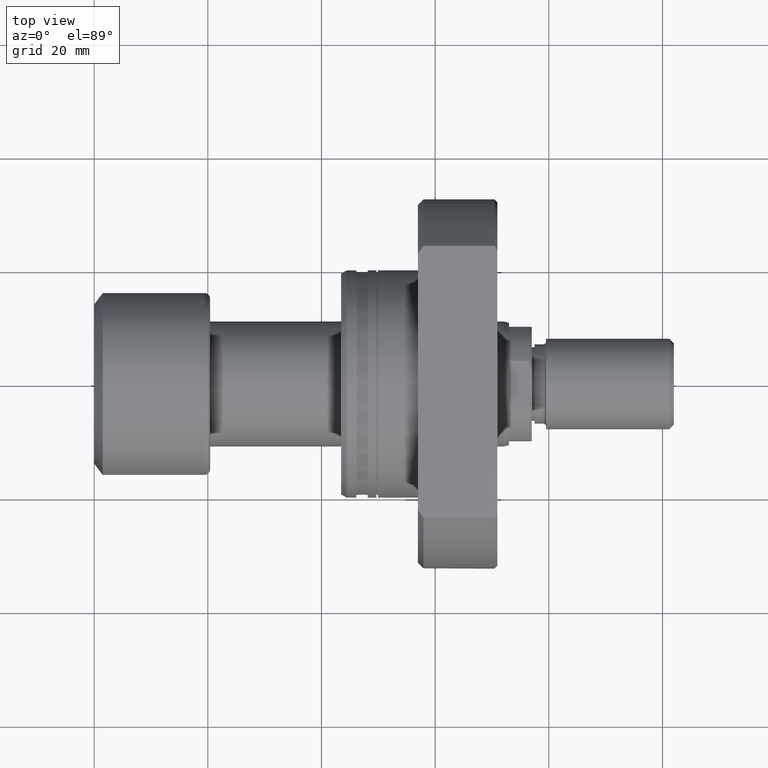
[diagram: clean part render]
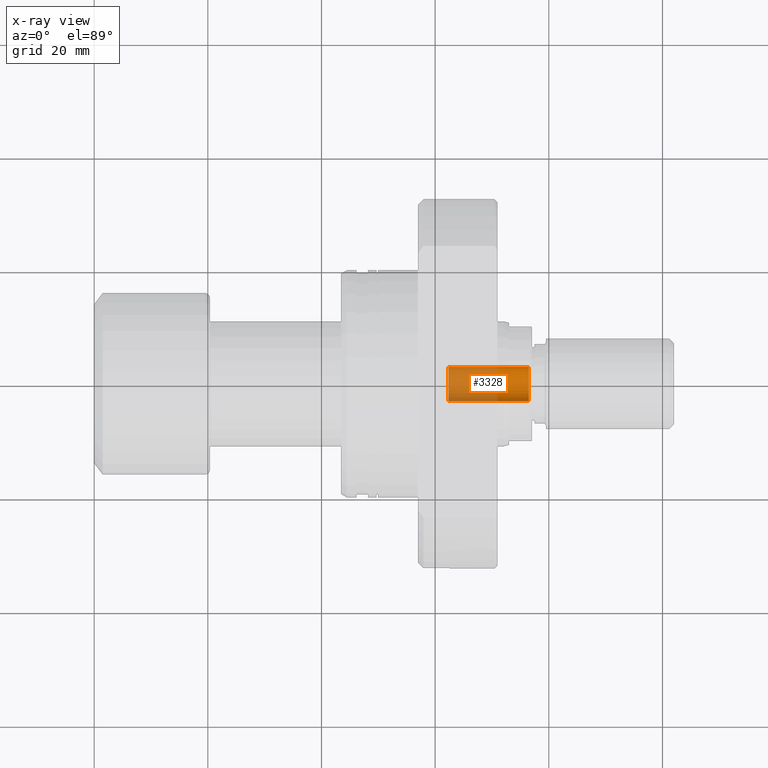
[diagram: x-ray — body ghosted, one internal face saturated and labeled with its STEP entity id]
A machine part, top view, then the same camera in x-ray: the body is ghosted and one INTERNAL B-rep face — a face not visible from any outside direction — is saturated and labeled: STEP entity #3328.
In plain terms, the highlighted cylindrical surface (edge-blend (fillet) strip) has radius 3 mm, axis along (1, -0, 0).
Its self-contained STEP definition (entity closure, byte-faithful):
#24 = EDGE_CURVE ( 'NONE', #3173, #2110, #705, .T. ) ;
#84 = DIRECTION ( 'NONE',  ( 1.619075244244818427E-14, 1.000000000000000000, 0.000000000000000000 ) ) ;
#106 = CARTESIAN_POINT ( 'NONE',  ( 76.50000000000008527, -1.267807571611558059E-12, 0.000000000000000000 ) ) ;
#110 = EDGE_CURVE ( 'NONE', #3337, #3173, #139, .T. ) ;
#139 = CIRCLE ( 'NONE', #2037, 3.000000000000373479 ) ;
#218 = CARTESIAN_POINT ( 'NONE',  ( 62.30000000000004690, 2.999999999999340972, 0.000000000000000000 ) ) ;
#277 = ORIENTED_EDGE ( 'NONE', *, *, #2679, .T. ) ;
#457 = DIRECTION ( 'NONE',  ( 1.619075244244818427E-14, 1.000000000000000000, 0.000000000000000000 ) ) ;
#705 = LINE ( 'NONE', #719, #2999 ) ;
#719 = CARTESIAN_POINT ( 'NONE',  ( 62.30000000000004690, 2.999999999999340972, 0.000000000000000000 ) ) ;
#877 = VERTEX_POINT ( 'NONE', #3384 ) ;
#925 = DIRECTION ( 'NONE',  ( 1.000000000000000000, -1.657264799492230625E-14, -0.000000000000000000 ) ) ;
#946 = CARTESIAN_POINT ( 'NONE',  ( 62.29999999999995453, -3.000000000001405986, 3.673940397442516914E-16 ) ) ;
#1075 = LINE ( 'NONE', #3344, #2421 ) ;
#1186 = CARTESIAN_POINT ( 'NONE',  ( 62.30000000000000426, -1.032475970083659863E-12, 0.000000000000000000 ) ) ;
#1219 = ORIENTED_EDGE ( 'NONE', *, *, #1362, .T. ) ;
#1223 = DIRECTION ( 'NONE',  ( 1.000000000000000000, -1.657264799492235042E-14, 0.000000000000000000 ) ) ;
#1362 = EDGE_CURVE ( 'NONE', #877, #2110, #1980, .T. ) ;
#1611 = CARTESIAN_POINT ( 'NONE',  ( 62.30000000000000426, -1.032475970083659863E-12, 0.000000000000000000 ) ) ;
#1760 = EDGE_LOOP ( 'NONE', ( #2087, #277, #1219, #2853 ) ) ;
#1796 = DIRECTION ( 'NONE',  ( -1.850371707708363781E-14, -1.000000000000000000, 0.000000000000000000 ) ) ;
#1940 = DIRECTION ( 'NONE',  ( 1.000000000000000000, -1.657264799492230625E-14, 0.000000000000000000 ) ) ;
#1980 = CIRCLE ( 'NONE', #2465, 3.000000000000373479 ) ;
#2037 = AXIS2_PLACEMENT_3D ( 'NONE', #1611, #1940, #457 ) ;
#2087 = ORIENTED_EDGE ( 'NONE', *, *, #110, .F. ) ;
#2110 = VERTEX_POINT ( 'NONE', #2424 ) ;
#2385 = DIRECTION ( 'NONE',  ( 1.000000000000000000, -1.657264799492230625E-14, -0.000000000000000000 ) ) ;
#2421 = VECTOR ( 'NONE', #3667, 1000.000000000000000 ) ;
#2424 = CARTESIAN_POINT ( 'NONE',  ( 76.50000000000014211, 2.999999999999105604, 0.000000000000000000 ) ) ;
#2465 = AXIS2_PLACEMENT_3D ( 'NONE', #106, #1223, #1796 ) ;
#2679 = EDGE_CURVE ( 'NONE', #3337, #877, #1075, .T. ) ;
#2779 = AXIS2_PLACEMENT_3D ( 'NONE', #1186, #925, #84 ) ;
#2853 = ORIENTED_EDGE ( 'NONE', *, *, #24, .F. ) ;
#2999 = VECTOR ( 'NONE', #2385, 1000.000000000000000 ) ;
#3173 = VERTEX_POINT ( 'NONE', #218 ) ;
#3183 = CYLINDRICAL_SURFACE ( 'NONE', #2779, 3.000000000000373479 ) ;
#3328 = ADVANCED_FACE ( 'NONE', ( #3498 ), #3183, .F. ) ;
#3337 = VERTEX_POINT ( 'NONE', #946 ) ;
#3344 = CARTESIAN_POINT ( 'NONE',  ( 62.29999999999995453, -3.000000000001405986, 3.673940397442516914E-16 ) ) ;
#3384 = CARTESIAN_POINT ( 'NONE',  ( 76.50000000000002842, -3.000000000001640466, 3.673940397442660388E-16 ) ) ;
#3498 = FACE_OUTER_BOUND ( 'NONE', #1760, .T. ) ;
#3667 = DIRECTION ( 'NONE',  ( 1.000000000000000000, -1.657264799492230625E-14, -0.000000000000000000 ) ) ;